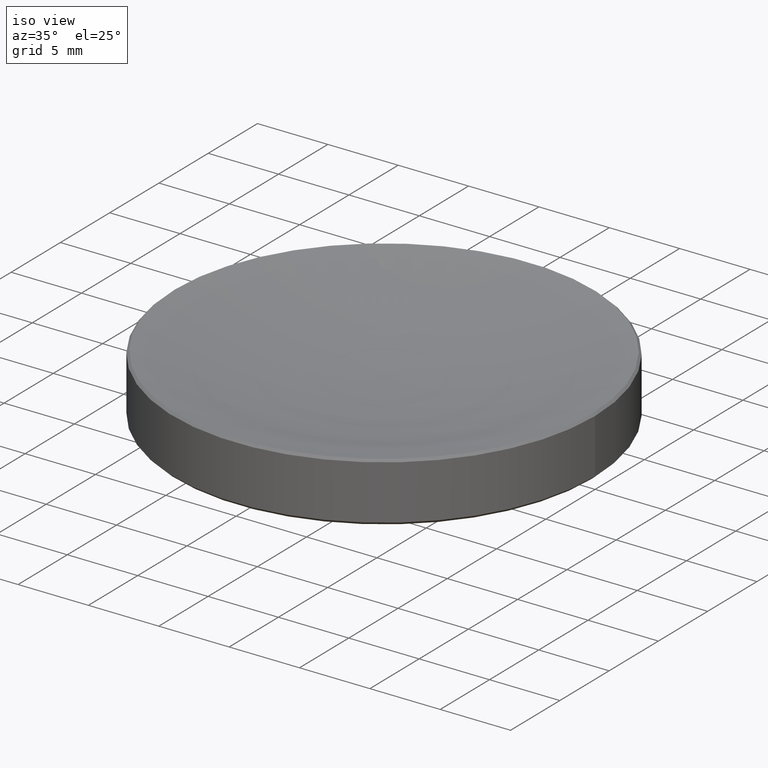
[diagram: clean part render]
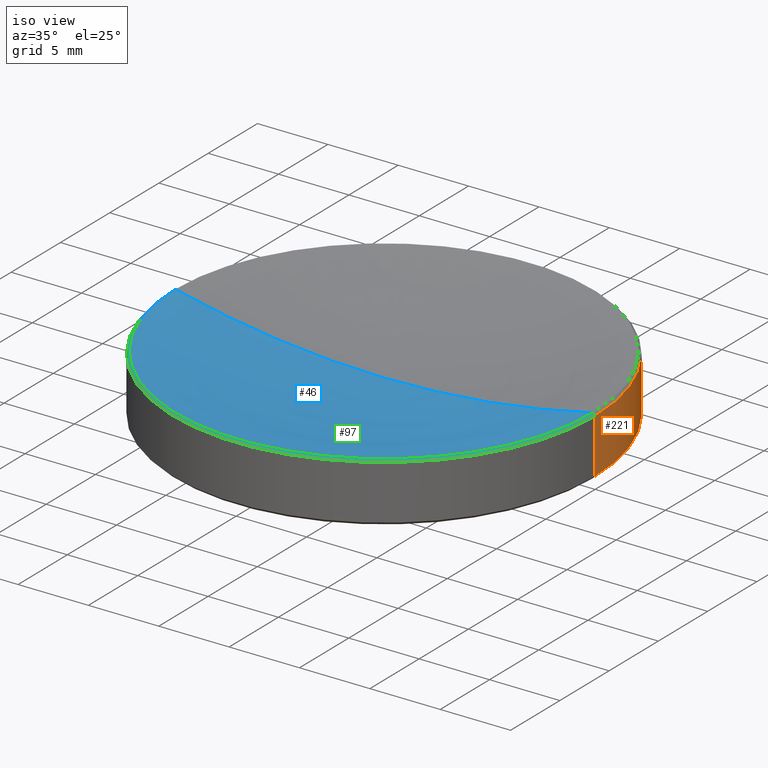
[diagram: same view with three faces highlighted in distinct colors, each labeled with its STEP entity id]
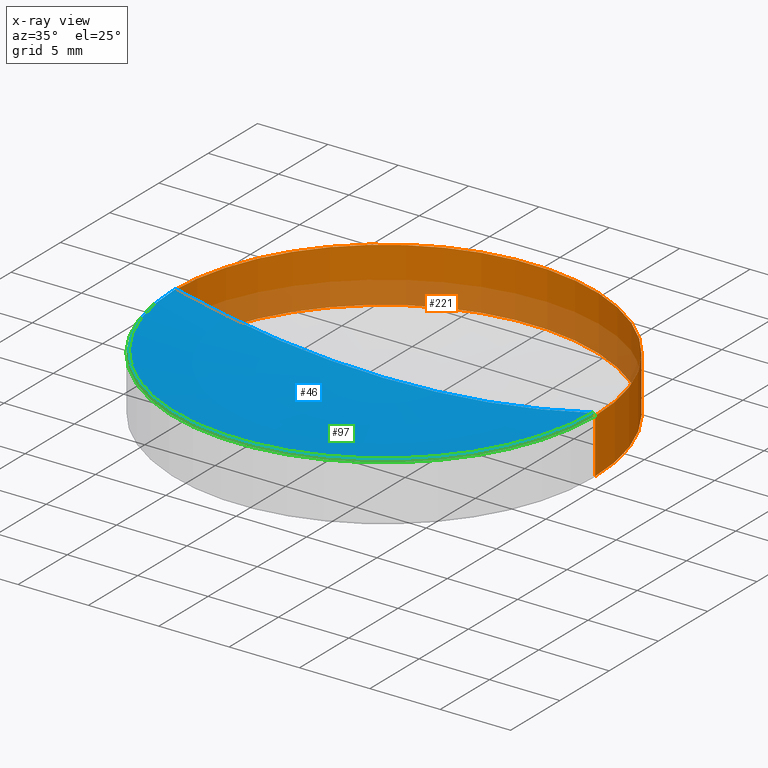
[diagram: x-ray of the same camera — body ghosted, the three highlighted faces saturated]
A machine part, iso view with three faces highlighted in distinct colors.
The next image is the same camera in x-ray (body ghosted, the three faces saturated) — at least one of them is partly hidden behind the body in this view.
Their STEP definitions:

[orange] entity #221 — the highlighted cylindrical surface (partial cylindrical patch) has radius 15 mm, axis along (-0, -0, 1).
#6 = EDGE_CURVE ( 'NONE', #188, #123, #131, .T. ) ;
#12 = DIRECTION ( 'NONE',  ( 0.000000000000000000, 0.000000000000000000, -1.000000000000000000 ) ) ;
#15 = CARTESIAN_POINT ( 'NONE',  ( -15.00000000000000000, 1.836970198721029589E-15, 2.500000000000000000 ) ) ;
#19 = CARTESIAN_POINT ( 'NONE',  ( 15.00000000000000000, 0.000000000000000000, 4.070000000000018048 ) ) ;
#26 = VERTEX_POINT ( 'NONE', #258 ) ;
#33 = DIRECTION ( 'NONE',  ( 1.000000000000000000, 0.000000000000000000, 0.000000000000000000 ) ) ;
#48 = AXIS2_PLACEMENT_3D ( 'NONE', #215, #12, #159 ) ;
#52 = VERTEX_POINT ( 'NONE', #176 ) ;
#53 = CIRCLE ( 'NONE', #205, 15.00000000000000000 ) ;
#58 = LINE ( 'NONE', #220, #172 ) ;
#64 = EDGE_CURVE ( 'NONE', #26, #52, #53, .T. ) ;
#68 = ORIENTED_EDGE ( 'NONE', *, *, #64, .T. ) ;
#70 = DIRECTION ( 'NONE',  ( 1.000000000000000000, 0.000000000000000000, 0.000000000000000000 ) ) ;
#79 = CYLINDRICAL_SURFACE ( 'NONE', #190, 15.00000000000000000 ) ;
#91 = EDGE_CURVE ( 'NONE', #26, #123, #58, .T. ) ;
#99 = DIRECTION ( 'NONE',  ( -0.000000000000000000, -0.000000000000000000, 1.000000000000000000 ) ) ;
#100 = DIRECTION ( 'NONE',  ( -0.000000000000000000, -0.000000000000000000, 1.000000000000000000 ) ) ;
#114 = ORIENTED_EDGE ( 'NONE', *, *, #91, .F. ) ;
#123 = VERTEX_POINT ( 'NONE', #19 ) ;
#126 = CARTESIAN_POINT ( 'NONE',  ( -15.00000000000000000, 1.836970198721029589E-15, 4.070000000000018048 ) ) ;
#128 = DIRECTION ( 'NONE',  ( -0.000000000000000000, -0.000000000000000000, 1.000000000000000000 ) ) ;
#131 = CIRCLE ( 'NONE', #48, 15.00000000000000000 ) ;
#156 = EDGE_LOOP ( 'NONE', ( #68, #161, #250, #114 ) ) ;
#159 = DIRECTION ( 'NONE',  ( -1.000000000000000000, 0.000000000000000000, 0.000000000000000000 ) ) ;
#161 = ORIENTED_EDGE ( 'NONE', *, *, #228, .T. ) ;
#172 = VECTOR ( 'NONE', #128, 1000.000000000000000 ) ;
#176 = CARTESIAN_POINT ( 'NONE',  ( -15.00000000000000000, 1.836970198721029589E-15, 0.1999999999999944600 ) ) ;
#188 = VERTEX_POINT ( 'NONE', #126 ) ;
#190 = AXIS2_PLACEMENT_3D ( 'NONE', #197, #100, #70 ) ;
#197 = CARTESIAN_POINT ( 'NONE',  ( 0.000000000000000000, 0.000000000000000000, 2.500000000000000000 ) ) ;
#205 = AXIS2_PLACEMENT_3D ( 'NONE', #211, #99, #33 ) ;
#211 = CARTESIAN_POINT ( 'NONE',  ( 0.000000000000000000, 0.000000000000000000, 0.1999999999999944600 ) ) ;
#212 = LINE ( 'NONE', #15, #249 ) ;
#214 = FACE_OUTER_BOUND ( 'NONE', #156, .T. ) ;
#215 = CARTESIAN_POINT ( 'NONE',  ( 0.000000000000000000, 0.000000000000000000, 4.070000000000018048 ) ) ;
#220 = CARTESIAN_POINT ( 'NONE',  ( 15.00000000000000000, 0.000000000000000000, 2.500000000000000000 ) ) ;
#221 = ADVANCED_FACE ( 'NONE', ( #214 ), #79, .T. ) ;
#228 = EDGE_CURVE ( 'NONE', #52, #188, #212, .T. ) ;
#232 = DIRECTION ( 'NONE',  ( -0.000000000000000000, -0.000000000000000000, 1.000000000000000000 ) ) ;
#249 = VECTOR ( 'NONE', #232, 1000.000000000000000 ) ;
#250 = ORIENTED_EDGE ( 'NONE', *, *, #6, .T. ) ;
#258 = CARTESIAN_POINT ( 'NONE',  ( 15.00000000000000000, 0.000000000000000000, 0.1999999999999944600 ) ) ;

[blue] entity #46 — the highlighted toroidal blend (fillet) surface has major radius 0.0125 mm and minor (blend) radius 64.55 mm.
#14 = CARTESIAN_POINT ( 'NONE',  ( 0.000000000000000000, 0.000000000000000000, 4.231581091428418873 ) ) ;
#21 = CIRCLE ( 'NONE', #169, 14.83841890857160806 ) ;
#23 = CIRCLE ( 'NONE', #49, 64.54999999999999716 ) ;
#29 = DIRECTION ( 'NONE',  ( 0.000000000000000000, -1.000000000000000000, 0.000000000000000000 ) ) ;
#32 = CARTESIAN_POINT ( 'NONE',  ( 0.000000000000000000, 0.000000000000000000, 2.500000000000000000 ) ) ;
#35 = CIRCLE ( 'NONE', #61, 64.54999999999999716 ) ;
#43 = EDGE_CURVE ( 'NONE', #163, #251, #21, .T. ) ;
#46 = ADVANCED_FACE ( 'NONE', ( #213 ), #102, .F. ) ;
#47 = VERTEX_POINT ( 'NONE', #32 ) ;
#49 = AXIS2_PLACEMENT_3D ( 'NONE', #261, #29, #236 ) ;
#55 = ORIENTED_EDGE ( 'NONE', *, *, #186, .F. ) ;
#59 = CARTESIAN_POINT ( 'NONE',  ( -14.83841890857158852, 1.817182222078975933E-15, 4.231581091428418873 ) ) ;
#61 = AXIS2_PLACEMENT_3D ( 'NONE', #76, #164, #139 ) ;
#63 = ORIENTED_EDGE ( 'NONE', *, *, #165, .T. ) ;
#73 = CARTESIAN_POINT ( 'NONE',  ( 0.000000000000000000, 0.000000000000000000, 67.04999879552784137 ) ) ;
#76 = CARTESIAN_POINT ( 'NONE',  ( 0.01246985787228815923, -1.527117152912011826E-18, 67.04999879552784137 ) ) ;
#78 = ORIENTED_EDGE ( 'NONE', *, *, #43, .T. ) ;
#102 = TOROIDAL_SURFACE ( 'NONE', #230, -0.01246985787228815923, 64.54999999999999716 ) ;
#117 = CARTESIAN_POINT ( 'NONE',  ( 14.83841890857158852, 0.000000000000000000, 4.231581091428418873 ) ) ;
#118 = DIRECTION ( 'NONE',  ( -0.000000000000000000, -0.000000000000000000, 1.000000000000000000 ) ) ;
#125 = DIRECTION ( 'NONE',  ( 1.000000000000000000, 0.000000000000000000, 0.000000000000000000 ) ) ;
#139 = DIRECTION ( 'NONE',  ( -1.000000000000000000, 1.224646799147352961E-16, 0.000000000000000000 ) ) ;
#160 = DIRECTION ( 'NONE',  ( -0.000000000000000000, -0.000000000000000000, 1.000000000000000000 ) ) ;
#163 = VERTEX_POINT ( 'NONE', #59 ) ;
#164 = DIRECTION ( 'NONE',  ( 1.224646799147353207E-16, 1.000000000000000000, 0.000000000000000000 ) ) ;
#165 = EDGE_CURVE ( 'NONE', #47, #163, #35, .T. ) ;
#169 = AXIS2_PLACEMENT_3D ( 'NONE', #14, #118, #191 ) ;
#186 = EDGE_CURVE ( 'NONE', #47, #251, #23, .T. ) ;
#191 = DIRECTION ( 'NONE',  ( 1.000000000000000000, 0.000000000000000000, 0.000000000000000000 ) ) ;
#213 = FACE_OUTER_BOUND ( 'NONE', #260, .T. ) ;
#230 = AXIS2_PLACEMENT_3D ( 'NONE', #73, #160, #125 ) ;
#236 = DIRECTION ( 'NONE',  ( 0.000000000000000000, 0.000000000000000000, -1.000000000000000000 ) ) ;
#251 = VERTEX_POINT ( 'NONE', #117 ) ;
#260 = EDGE_LOOP ( 'NONE', ( #55, #63, #78 ) ) ;
#261 = CARTESIAN_POINT ( 'NONE',  ( -0.01246985787228815923, 0.000000000000000000, 67.04999879552784137 ) ) ;

[green] entity #97 — the highlighted conical surface has half-angle 45 deg.
#2 = FACE_OUTER_BOUND ( 'NONE', #69, .T. ) ;
#7 = VECTOR ( 'NONE', #121, 1000.000000000000000 ) ;
#14 = CARTESIAN_POINT ( 'NONE',  ( 0.000000000000000000, 0.000000000000000000, 4.231581091428418873 ) ) ;
#19 = CARTESIAN_POINT ( 'NONE',  ( 15.00000000000000000, 0.000000000000000000, 4.070000000000018048 ) ) ;
#21 = CIRCLE ( 'NONE', #169, 14.83841890857160806 ) ;
#43 = EDGE_CURVE ( 'NONE', #163, #251, #21, .T. ) ;
#45 = CIRCLE ( 'NONE', #152, 15.00000000000000000 ) ;
#57 = LINE ( 'NONE', #200, #180 ) ;
#59 = CARTESIAN_POINT ( 'NONE',  ( -14.83841890857158852, 1.817182222078975933E-15, 4.231581091428418873 ) ) ;
#60 = AXIS2_PLACEMENT_3D ( 'NONE', #243, #239, #107 ) ;
#65 = CONICAL_SURFACE ( 'NONE', #60, 14.83841890857159029, 0.7853981633974321808 ) ;
#69 = EDGE_LOOP ( 'NONE', ( #177, #138, #231, #189 ) ) ;
#97 = ADVANCED_FACE ( 'NONE', ( #2 ), #65, .T. ) ;
#103 = CARTESIAN_POINT ( 'NONE',  ( 0.000000000000000000, 0.000000000000000000, 4.070000000000018048 ) ) ;
#107 = DIRECTION ( 'NONE',  ( -1.000000000000000000, 0.000000000000000000, 0.000000000000000000 ) ) ;
#111 = EDGE_CURVE ( 'NONE', #163, #188, #57, .T. ) ;
#117 = CARTESIAN_POINT ( 'NONE',  ( 14.83841890857158852, 0.000000000000000000, 4.231581091428418873 ) ) ;
#118 = DIRECTION ( 'NONE',  ( -0.000000000000000000, -0.000000000000000000, 1.000000000000000000 ) ) ;
#121 = DIRECTION ( 'NONE',  ( 0.7071067811865361374, 8.659560562354793575E-17, -0.7071067811865588970 ) ) ;
#123 = VERTEX_POINT ( 'NONE', #19 ) ;
#124 = LINE ( 'NONE', #216, #7 ) ;
#126 = CARTESIAN_POINT ( 'NONE',  ( -15.00000000000000000, 1.836970198721029589E-15, 4.070000000000018048 ) ) ;
#138 = ORIENTED_EDGE ( 'NONE', *, *, #43, .F. ) ;
#152 = AXIS2_PLACEMENT_3D ( 'NONE', #103, #259, #257 ) ;
#163 = VERTEX_POINT ( 'NONE', #59 ) ;
#169 = AXIS2_PLACEMENT_3D ( 'NONE', #14, #118, #191 ) ;
#177 = ORIENTED_EDGE ( 'NONE', *, *, #202, .F. ) ;
#180 = VECTOR ( 'NONE', #217, 1000.000000000000000 ) ;
#188 = VERTEX_POINT ( 'NONE', #126 ) ;
#189 = ORIENTED_EDGE ( 'NONE', *, *, #252, .F. ) ;
#191 = DIRECTION ( 'NONE',  ( 1.000000000000000000, 0.000000000000000000, 0.000000000000000000 ) ) ;
#200 = CARTESIAN_POINT ( 'NONE',  ( -14.83841890857159029, 0.000000000000000000, 4.231581091428432195 ) ) ;
#202 = EDGE_CURVE ( 'NONE', #251, #123, #124, .T. ) ;
#216 = CARTESIAN_POINT ( 'NONE',  ( 14.83841890857159029, 1.817182222078975933E-15, 4.231581091428432195 ) ) ;
#217 = DIRECTION ( 'NONE',  ( -0.7071067811865361374, 0.000000000000000000, -0.7071067811865588970 ) ) ;
#231 = ORIENTED_EDGE ( 'NONE', *, *, #111, .T. ) ;
#239 = DIRECTION ( 'NONE',  ( 0.000000000000000000, 0.000000000000000000, -1.000000000000000000 ) ) ;
#243 = CARTESIAN_POINT ( 'NONE',  ( 0.000000000000000000, 0.000000000000000000, 4.231581091428432195 ) ) ;
#251 = VERTEX_POINT ( 'NONE', #117 ) ;
#252 = EDGE_CURVE ( 'NONE', #123, #188, #45, .T. ) ;
#257 = DIRECTION ( 'NONE',  ( -1.000000000000000000, 0.000000000000000000, 0.000000000000000000 ) ) ;
#259 = DIRECTION ( 'NONE',  ( 0.000000000000000000, 0.000000000000000000, -1.000000000000000000 ) ) ;